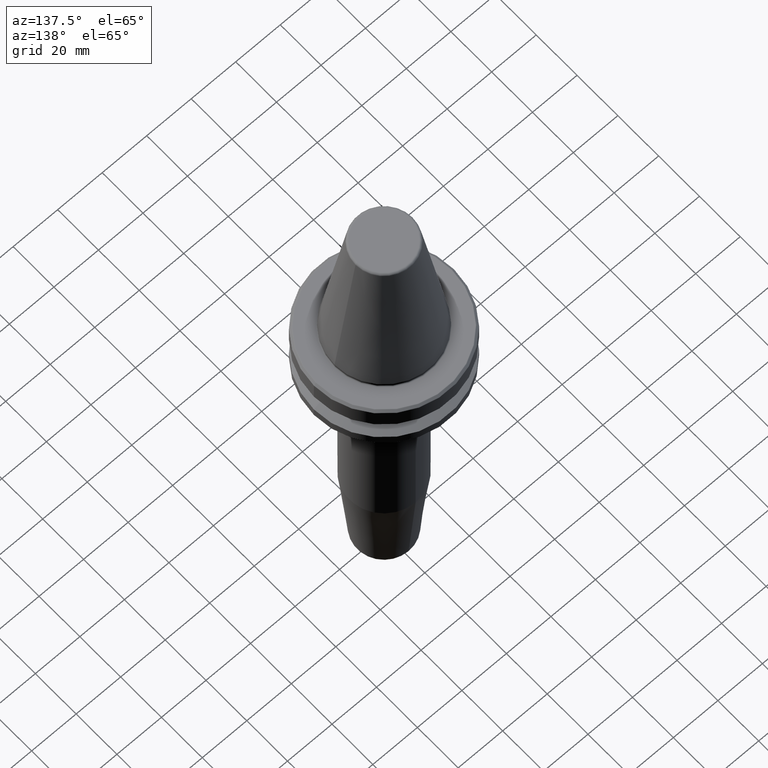
[diagram: clean part render]
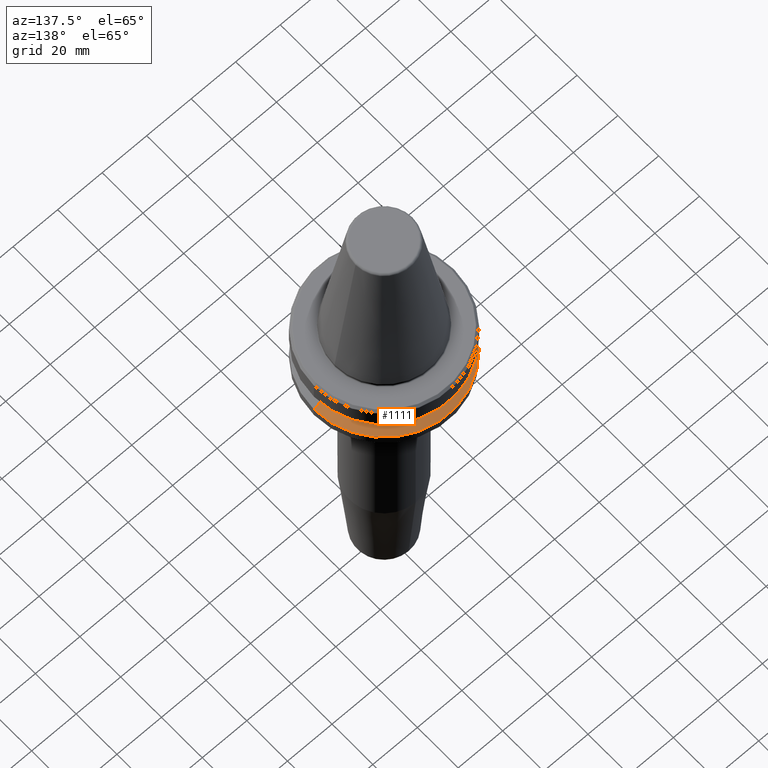
[diagram: same view with one face highlighted and labeled with its STEP entity id]
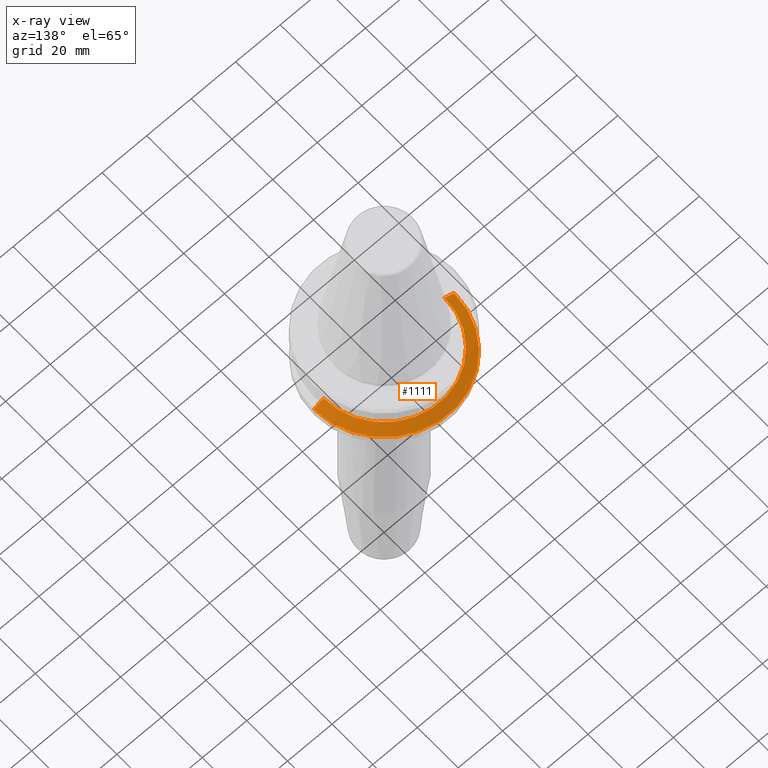
[diagram: x-ray of the same camera — body ghosted, the highlighted face saturated]
A machine part, auxiliary view. The second image highlights one B-rep face of the part: STEP entity #1111.
The next image is the same camera in x-ray: the body ghosted, the highlighted face saturated — about 0% of this face is hidden behind the body in this view.
In plain terms, the highlighted conical surface has half-angle 60 deg.
Its self-contained STEP definition (entity closure, byte-faithful):
#57 = EDGE_CURVE ( 'NONE', #279, #734, #183, .T. ) ;
#62 = AXIS2_PLACEMENT_3D ( 'NONE', #985, #797, #688 ) ;
#98 = CARTESIAN_POINT ( 'NONE',  ( -27.16962701892216700, 0.0000000000000000000, -19.10000000000000500 ) ) ;
#157 = ORIENTED_EDGE ( 'NONE', *, *, #871, .T. ) ;
#159 = LINE ( 'NONE', #443, #673 ) ;
#183 = CIRCLE ( 'NONE', #62, 31.50000000000000000 ) ;
#198 = CIRCLE ( 'NONE', #1064, 27.16962701892216700 ) ;
#213 = CARTESIAN_POINT ( 'NONE',  ( 0.0000000000000000000, 0.0000000000000000000, -19.10000000000000500 ) ) ;
#251 = DIRECTION ( 'NONE',  ( -0.8660254037844403700, 0.0000000000000000000, -0.4999999999999970000 ) ) ;
#279 = VERTEX_POINT ( 'NONE', #502 ) ;
#306 = DIRECTION ( 'NONE',  ( 1.000000000000000000, 0.0000000000000000000, 0.0000000000000000000 ) ) ;
#319 = EDGE_CURVE ( 'NONE', #436, #734, #1074, .T. ) ;
#330 = VERTEX_POINT ( 'NONE', #539 ) ;
#366 = ORIENTED_EDGE ( 'NONE', *, *, #319, .F. ) ;
#387 = AXIS2_PLACEMENT_3D ( 'NONE', #869, #1167, #669 ) ;
#419 = CARTESIAN_POINT ( 'NONE',  ( -31.50000000000000000, 3.857637417314162700E-015, -21.60014200631675500 ) ) ;
#436 = VERTEX_POINT ( 'NONE', #98 ) ;
#443 = CARTESIAN_POINT ( 'NONE',  ( 27.16962701892216700, 3.327319676275047600E-015, -19.10000000000000500 ) ) ;
#502 = CARTESIAN_POINT ( 'NONE',  ( 31.50000000000000000, 0.0000000000000000000, -21.60014200631675500 ) ) ;
#539 = CARTESIAN_POINT ( 'NONE',  ( 27.16962701892216700, 3.592478546794605500E-015, -19.10000000000000500 ) ) ;
#546 = DIRECTION ( 'NONE',  ( 0.8660254037844403700, 1.060575238724909000E-016, -0.4999999999999970000 ) ) ;
#548 = VECTOR ( 'NONE', #251, 1000.000000000000000 ) ;
#631 = CONICAL_SURFACE ( 'NONE', #387, 27.16962701892216700, 1.047197551196601200 ) ;
#633 = EDGE_LOOP ( 'NONE', ( #1057, #157, #1031, #366 ) ) ;
#669 = DIRECTION ( 'NONE',  ( -1.000000000000000000, 0.0000000000000000000, 0.0000000000000000000 ) ) ;
#673 = VECTOR ( 'NONE', #546, 1000.000000000000000 ) ;
#688 = DIRECTION ( 'NONE',  ( 1.000000000000000000, 0.0000000000000000000, 0.0000000000000000000 ) ) ;
#734 = VERTEX_POINT ( 'NONE', #419 ) ;
#797 = DIRECTION ( 'NONE',  ( -0.0000000000000000000, -0.0000000000000000000, 1.000000000000000000 ) ) ;
#869 = CARTESIAN_POINT ( 'NONE',  ( 0.0000000000000000000, 0.0000000000000000000, -19.10000000000000500 ) ) ;
#871 = EDGE_CURVE ( 'NONE', #330, #279, #159, .T. ) ;
#894 = DIRECTION ( 'NONE',  ( -0.0000000000000000000, -0.0000000000000000000, 1.000000000000000000 ) ) ;
#925 = FACE_OUTER_BOUND ( 'NONE', #633, .T. ) ;
#985 = CARTESIAN_POINT ( 'NONE',  ( 0.0000000000000000000, 0.0000000000000000000, -21.60014200631675500 ) ) ;
#1031 = ORIENTED_EDGE ( 'NONE', *, *, #57, .T. ) ;
#1057 = ORIENTED_EDGE ( 'NONE', *, *, #1209, .F. ) ;
#1064 = AXIS2_PLACEMENT_3D ( 'NONE', #213, #894, #306 ) ;
#1074 = LINE ( 'NONE', #1083, #548 ) ;
#1083 = CARTESIAN_POINT ( 'NONE',  ( -27.16962701892216700, 0.0000000000000000000, -19.10000000000000500 ) ) ;
#1111 = ADVANCED_FACE ( 'NONE', ( #925 ), #631, .T. ) ;
#1167 = DIRECTION ( 'NONE',  ( 0.0000000000000000000, 0.0000000000000000000, -1.000000000000000000 ) ) ;
#1209 = EDGE_CURVE ( 'NONE', #330, #436, #198, .T. ) ;